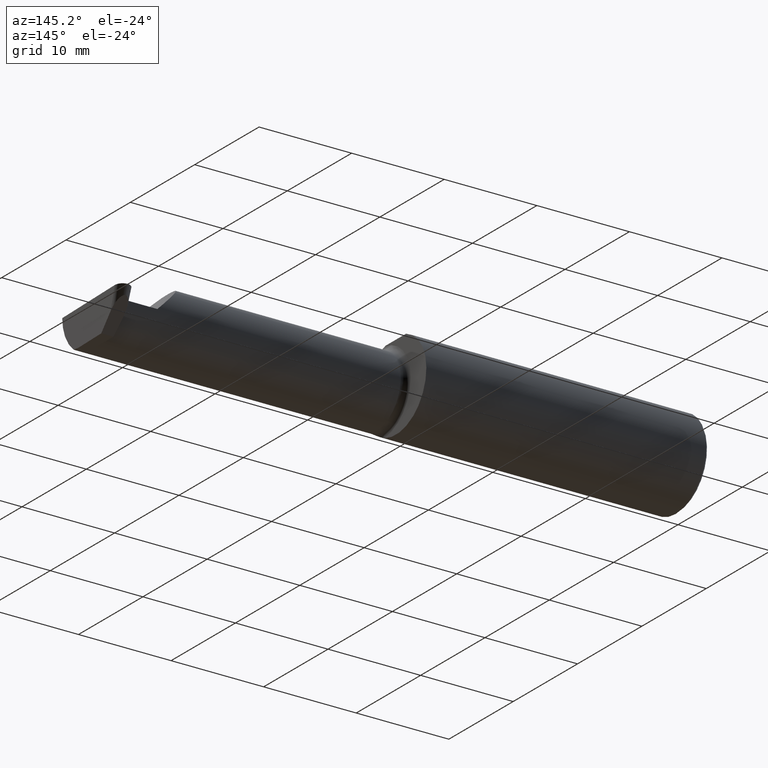
[diagram: clean part render]
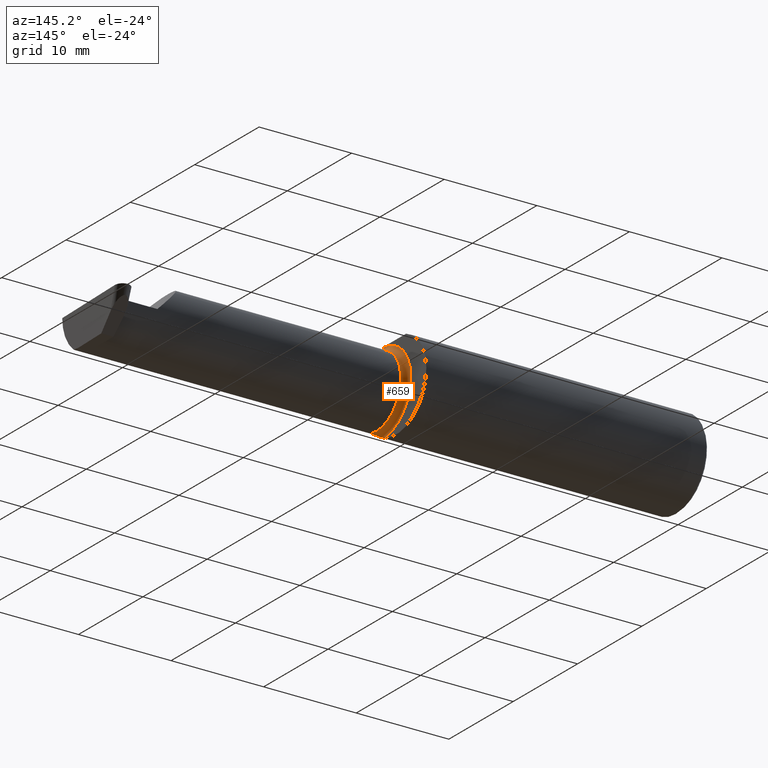
[diagram: same view with one face highlighted and labeled with its STEP entity id]
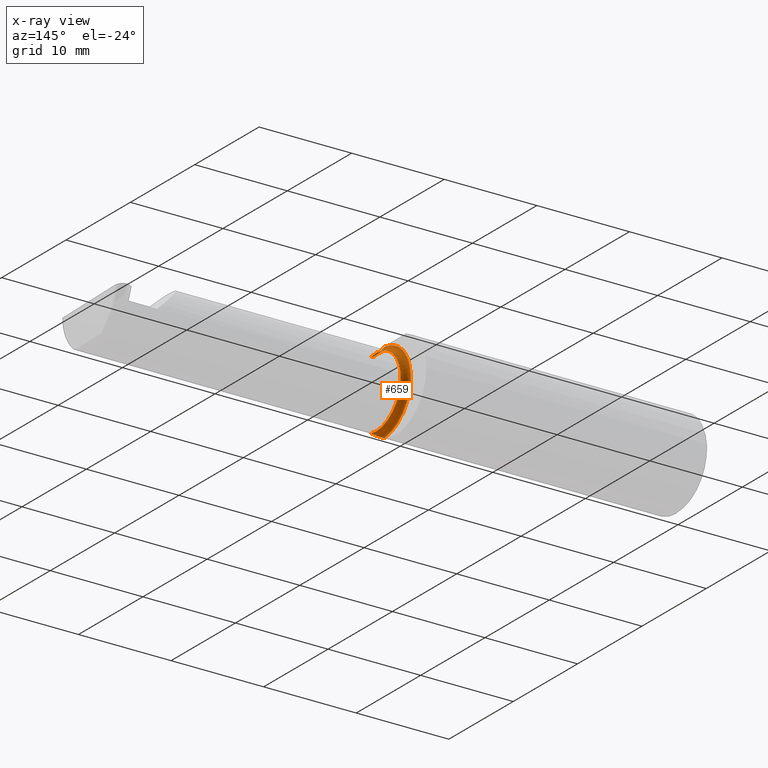
[diagram: x-ray of the same camera — body ghosted, the highlighted face saturated]
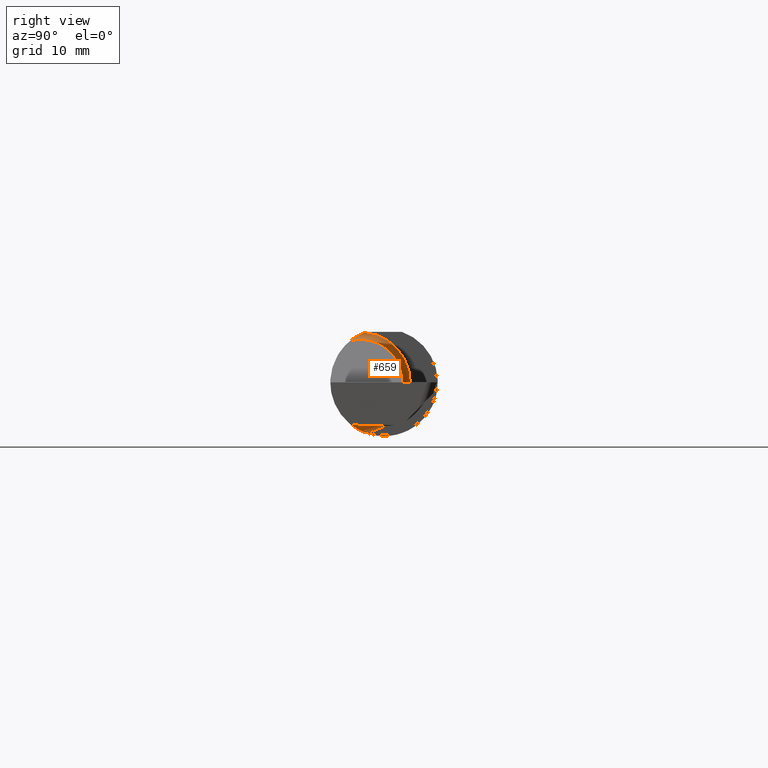
[diagram: same view with one face highlighted and labeled with its STEP entity id]
A machine part, auxiliary view. The second image highlights one B-rep face of the part: STEP entity #659.
The next image is the same camera in x-ray: the body ghosted, the highlighted face saturated — about 0% of this face is hidden behind the body in this view.
A second angle (right view) of the same face is appended — the face is thin or edge-on in the first view.
In plain terms, the highlighted toroidal blend (fillet) surface has major radius 4.445 mm and minor (blend) radius 0.635 mm.
Its self-contained STEP definition (entity closure, byte-faithful):
#15 = CARTESIAN_POINT ( 'NONE',  ( 1.222161949849308371, -0.1172600179964063821, 0.1461167706989258686 ) ) ;
#24 = EDGE_CURVE ( 'NONE', #432, #397, #139, .T. ) ;
#25 = CARTESIAN_POINT ( 'NONE',  ( 1.200353553376445115, -0.07868116735658681193, 0.1701139256562800572 ) ) ;
#31 = CARTESIAN_POINT ( 'NONE',  ( 1.219511795768554840, -0.1163687266324236191, -0.1468371510166787963 ) ) ;
#62 = CARTESIAN_POINT ( 'NONE',  ( 1.225000000000000089, -0.1172600179964007477, 0.1461167706989301984 ) ) ;
#68 = DIRECTION ( 'NONE',  ( 6.902170632284375996E-17, -1.000000000000000000, 0.000000000000000000 ) ) ;
#118 = CARTESIAN_POINT ( 'NONE',  ( 1.202960551809340251, -0.09317341542745753713, -0.1626248379125196653 ) ) ;
#130 = CARTESIAN_POINT ( 'NONE',  ( 1.199999999999999956, -0.06851976604679066440, -0.1743704796142198643 ) ) ;
#139 = CIRCLE ( 'NONE', #524, 0.1749999999999999889 ) ;
#160 = AXIS2_PLACEMENT_3D ( 'NONE', #436, #604, #68 ) ;
#191 = ORIENTED_EDGE ( 'NONE', *, *, #480, .T. ) ;
#204 = CIRCLE ( 'NONE', #252, 0.1499999999999999112 ) ;
#229 = CARTESIAN_POINT ( 'NONE',  ( 1.213203859946833996, -0.1120371980050639676, -0.1501764597936558199 ) ) ;
#232 = CARTESIAN_POINT ( 'NONE',  ( 1.206304331342287650, -0.1022198306720692035, -0.1570962426853817762 ) ) ;
#244 = CARTESIAN_POINT ( 'NONE',  ( 1.222174967710399462, -0.1172600179964008033, -0.1461167706989301707 ) ) ;
#252 = AXIS2_PLACEMENT_3D ( 'NONE', #614, #343, #445 ) ;
#268 = CARTESIAN_POINT ( 'NONE',  ( 1.225000000000000089, -0.1172600179964007477, 0.1461167706989301984 ) ) ;
#280 = CARTESIAN_POINT ( 'NONE',  ( 1.208475602106621416, -0.1064978748893407601, 0.1542035505680382779 ) ) ;
#294 = CARTESIAN_POINT ( 'NONE',  ( 1.225000000000000089, -0.1172600179964008171, -0.1461167706989301984 ) ) ;
#298 = CARTESIAN_POINT ( 'NONE',  ( 1.215028532764138580, -0.1137241120808236416, -0.1488947809299402958 ) ) ;
#333 = CARTESIAN_POINT ( 'NONE',  ( 1.206287624083520305, -0.1021858045380147212, 0.1571187174372874473 ) ) ;
#336 = CARTESIAN_POINT ( 'NONE',  ( 1.201829077486400443, -0.08839624499054657414, 0.1652742498708036911 ) ) ;
#341 = CARTESIAN_POINT ( 'NONE',  ( 1.199999999999999956, -0.07368234487347199990, -0.1723418180300747837 ) ) ;
#343 = DIRECTION ( 'NONE',  ( -1.000000000000000000, -6.902170632284375996E-17, -0.000000000000000000 ) ) ;
#354 = CARTESIAN_POINT ( 'NONE',  ( 1.225000000000000089, -0.1172600179964008171, -0.1461167706989301984 ) ) ;
#373 = B_SPLINE_CURVE_WITH_KNOTS ( 'NONE', 3,
 ( #392, #401, #25, #336, #667, #333, #280, #454, #560, #386, #15, #62 ),
 .UNSPECIFIED., .F., .F.,
 ( 4, 2, 2, 2, 2, 4 ),
 ( 4.423516731080811751E-05, 0.0004615475116586734692, 0.0008788598560065388277, 0.001296172200354404240, 0.001504828372528336025, 0.001713484544702268027 ),
 .UNSPECIFIED. ) ;
#385 = CARTESIAN_POINT ( 'NONE',  ( 1.199999999999999956, -0.08335000000000007681, 0.000000000000000000 ) ) ;
#386 = CARTESIAN_POINT ( 'NONE',  ( 1.219481469043492083, -0.1163560528186167731, 0.1468472430636322268 ) ) ;
#392 = CARTESIAN_POINT ( 'NONE',  ( 1.199999999999999956, -0.06851976604679066440, 0.1743704796142198643 ) ) ;
#394 = VERTEX_POINT ( 'NONE', #294 ) ;
#397 = VERTEX_POINT ( 'NONE', #616 ) ;
#401 = CARTESIAN_POINT ( 'NONE',  ( 1.199999999999999956, -0.07367581953296710451, 0.1723443821957855171 ) ) ;
#409 = CARTESIAN_POINT ( 'NONE',  ( 1.208439486659306672, -0.1064616213911159376, -0.1542305641651500192 ) ) ;
#432 = VERTEX_POINT ( 'NONE', #562 ) ;
#434 = B_SPLINE_CURVE_WITH_KNOTS ( 'NONE', 3,
 ( #354, #244, #31, #298, #229, #409, #232, #118, #687, #625, #341, #130 ),
 .UNSPECIFIED., .F., .F.,
 ( 4, 2, 2, 2, 2, 4 ),
 ( 1.967976973692733563E-07, 0.0002120314145722270013, 0.0004238660314470846929, 0.0008475352651968001303, 0.001271204498946515568, 0.001694873732696231114 ),
 .UNSPECIFIED. ) ;
#435 = DIRECTION ( 'NONE',  ( -1.000000000000000000, -6.902170632284375996E-17, -0.000000000000000000 ) ) ;
#436 = CARTESIAN_POINT ( 'NONE',  ( 1.225000000000000089, -0.08335000000000010456, 0.000000000000000000 ) ) ;
#443 = DIRECTION ( 'NONE',  ( 0.000000000000000000, -1.000000000000000000, 0.000000000000000000 ) ) ;
#445 = DIRECTION ( 'NONE',  ( 0.000000000000000000, -1.000000000000000000, 0.000000000000000000 ) ) ;
#448 = ORIENTED_EDGE ( 'NONE', *, *, #24, .F. ) ;
#454 = CARTESIAN_POINT ( 'NONE',  ( 1.213163223656403167, -0.1119926267047279267, 0.1502091925606061362 ) ) ;
#455 = ORIENTED_EDGE ( 'NONE', *, *, #692, .T. ) ;
#480 = EDGE_CURVE ( 'NONE', #394, #397, #434, .T. ) ;
#488 = FACE_OUTER_BOUND ( 'NONE', #648, .T. ) ;
#524 = AXIS2_PLACEMENT_3D ( 'NONE', #385, #435, #443 ) ;
#532 = VERTEX_POINT ( 'NONE', #268 ) ;
#535 = TOROIDAL_SURFACE ( 'NONE', #160, 0.1749999999999999889, 0.02500000000000007425 ) ;
#560 = CARTESIAN_POINT ( 'NONE',  ( 1.215004157323697376, -0.1137044537483317963, 0.1489098419202427304 ) ) ;
#562 = CARTESIAN_POINT ( 'NONE',  ( 1.199999999999999956, -0.06851976604679066440, 0.1743704796142198643 ) ) ;
#604 = DIRECTION ( 'NONE',  ( -1.000000000000000000, -6.902170632284375996E-17, -0.000000000000000000 ) ) ;
#614 = CARTESIAN_POINT ( 'NONE',  ( 1.225000000000000089, -0.08335000000000007681, 0.000000000000000000 ) ) ;
#616 = CARTESIAN_POINT ( 'NONE',  ( 1.199999999999999956, -0.06851976604679066440, -0.1743704796142198643 ) ) ;
#624 = ORIENTED_EDGE ( 'NONE', *, *, #683, .T. ) ;
#625 = CARTESIAN_POINT ( 'NONE',  ( 1.200358271039144276, -0.07873626113568087115, -0.1700887912276896063 ) ) ;
#648 = EDGE_LOOP ( 'NONE', ( #624, #455, #191, #448 ) ) ;
#659 = ADVANCED_FACE ( 'NONE', ( #488 ), #535, .F. ) ;
#667 = CARTESIAN_POINT ( 'NONE',  ( 1.202945243422983035, -0.09312071749437438040, 0.1626553472577905168 ) ) ;
#683 = EDGE_CURVE ( 'NONE', #432, #532, #373, .T. ) ;
#687 = CARTESIAN_POINT ( 'NONE',  ( 1.201843912362378086, -0.08846956905169094110, -0.1652353808078971809 ) ) ;
#692 = EDGE_CURVE ( 'NONE', #532, #394, #204, .T. ) ;